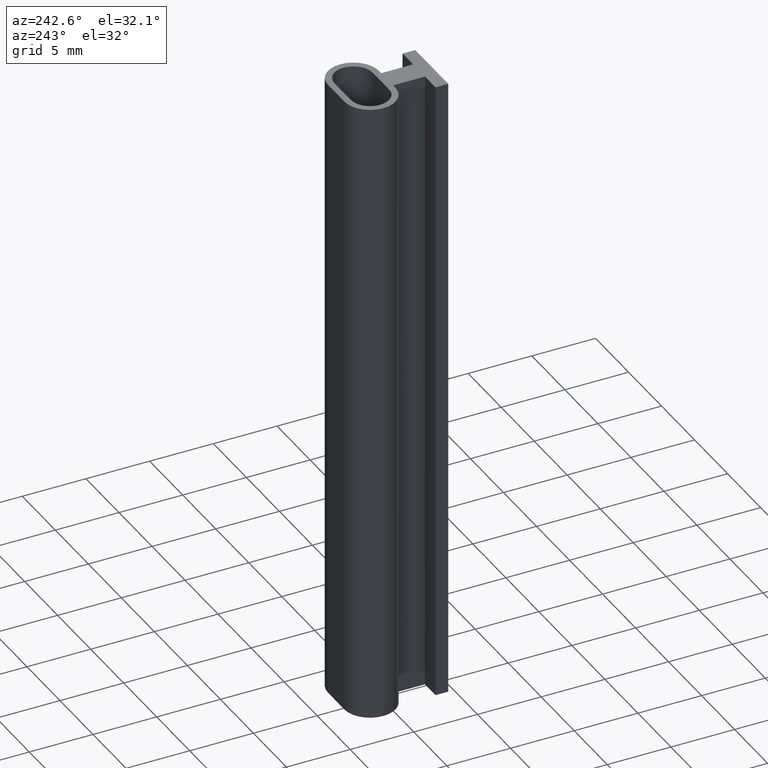
[diagram: clean part render]
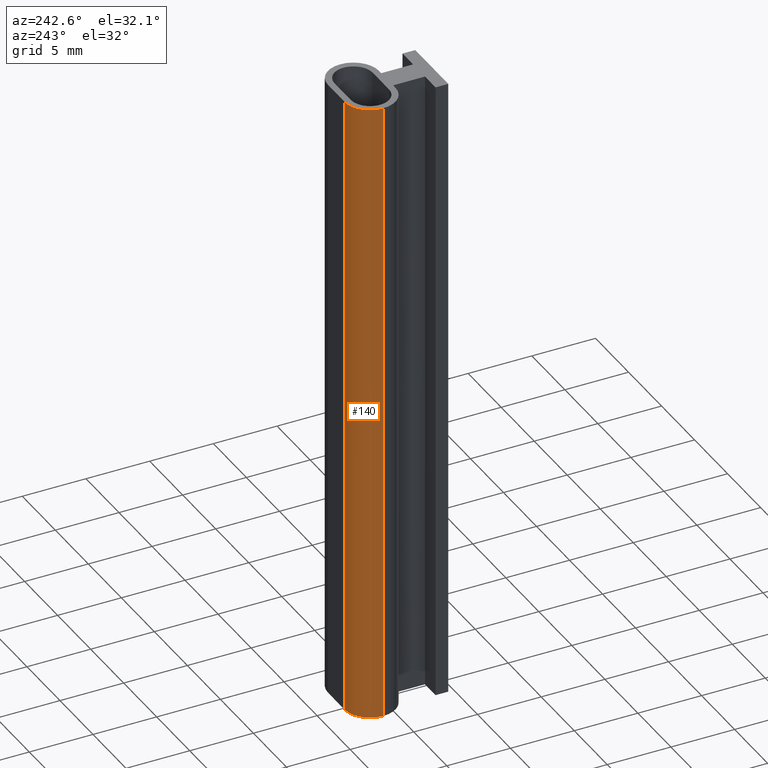
[diagram: same view with one face highlighted and labeled with its STEP entity id]
A machine part, auxiliary view. The second image highlights one B-rep face of the part: STEP entity #140.
In plain terms, the highlighted cylindrical surface (edge-blend (fillet) strip) has radius 2 mm, axis along (0, 0, 1).
Its self-contained STEP definition (entity closure, byte-faithful):
#82=CARTESIAN_POINT('',(-1.250000000000000,3.500000000000000,-50.0));
#83=VERTEX_POINT('',#82);
#90=CARTESIAN_POINT('',(-1.250000000000000,3.500000000000000,0.0));
#91=VERTEX_POINT('',#90);
#92=CARTESIAN_POINT('',(-1.250000000000000,3.500000000000000,-50.0));
#93=DIRECTION('',(0.0,0.0,1.0));
#94=VECTOR('',#93,50.0);
#95=LINE('',#92,#94);
#96=EDGE_CURVE('',#83,#91,#95,.T.);
#108=CARTESIAN_POINT('',(-1.250000000000000,1.500000000000000,-50.0));
#109=DIRECTION('',(0.0,0.0,1.0));
#110=DIRECTION('',(-6.123234E-017,1.0,0.0));
#111=AXIS2_PLACEMENT_3D('',#108,#109,#110);
#112=CYLINDRICAL_SURFACE('',#111,2.0);
#113=CARTESIAN_POINT('',(-3.250000000000000,1.500000000000000,-50.0));
#114=VERTEX_POINT('',#113);
#115=CARTESIAN_POINT('',(-1.250000000000000,1.500000000000000,-50.0));
#116=DIRECTION('',(0.0,0.0,1.0));
#117=DIRECTION('',(-1.0,0.0,0.0));
#118=AXIS2_PLACEMENT_3D('',#115,#116,#117);
#119=CIRCLE('',#118,2.0);
#120=EDGE_CURVE('',#83,#114,#119,.T.);
#121=ORIENTED_EDGE('',*,*,#120,.T.);
#122=CARTESIAN_POINT('',(-3.250000000000000,1.500000000000000,0.0));
#123=VERTEX_POINT('',#122);
#124=CARTESIAN_POINT('',(-3.250000000000000,1.500000000000000,-50.0));
#125=DIRECTION('',(0.0,0.0,1.0));
#126=VECTOR('',#125,50.0);
#127=LINE('',#124,#126);
#128=EDGE_CURVE('',#114,#123,#127,.T.);
#129=ORIENTED_EDGE('',*,*,#128,.T.);
#130=CARTESIAN_POINT('',(-1.250000000000000,1.500000000000000,0.0));
#131=DIRECTION('',(0.0,0.0,1.0));
#132=DIRECTION('',(-1.0,0.0,0.0));
#133=AXIS2_PLACEMENT_3D('',#130,#131,#132);
#134=CIRCLE('',#133,2.0);
#135=EDGE_CURVE('',#91,#123,#134,.T.);
#136=ORIENTED_EDGE('',*,*,#135,.F.);
#137=ORIENTED_EDGE('',*,*,#96,.F.);
#138=EDGE_LOOP('',(#121,#129,#136,#137));
#139=FACE_OUTER_BOUND('',#138,.T.);
#140=ADVANCED_FACE('',(#139),#112,.T.);